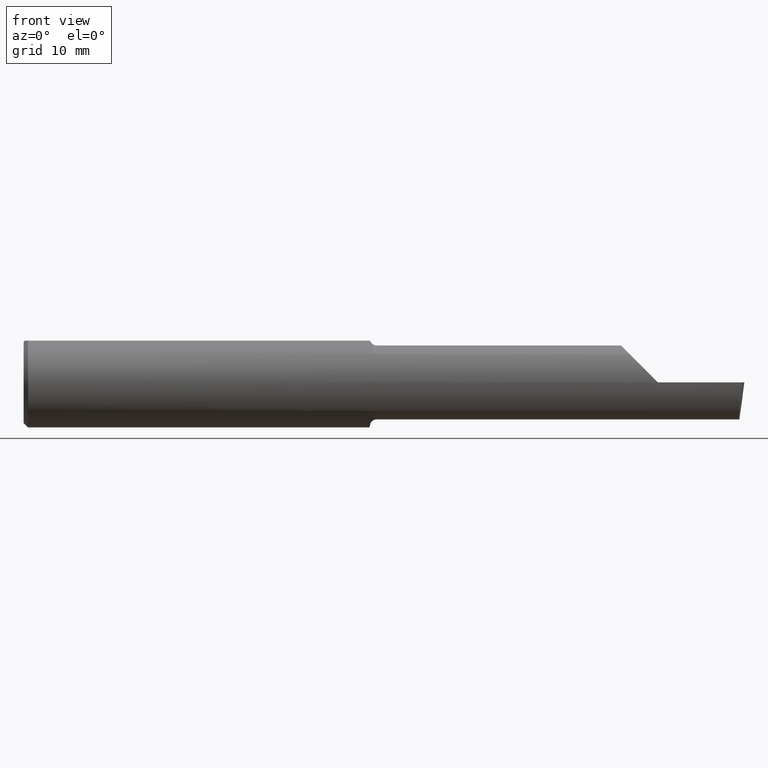
[diagram: clean part render]
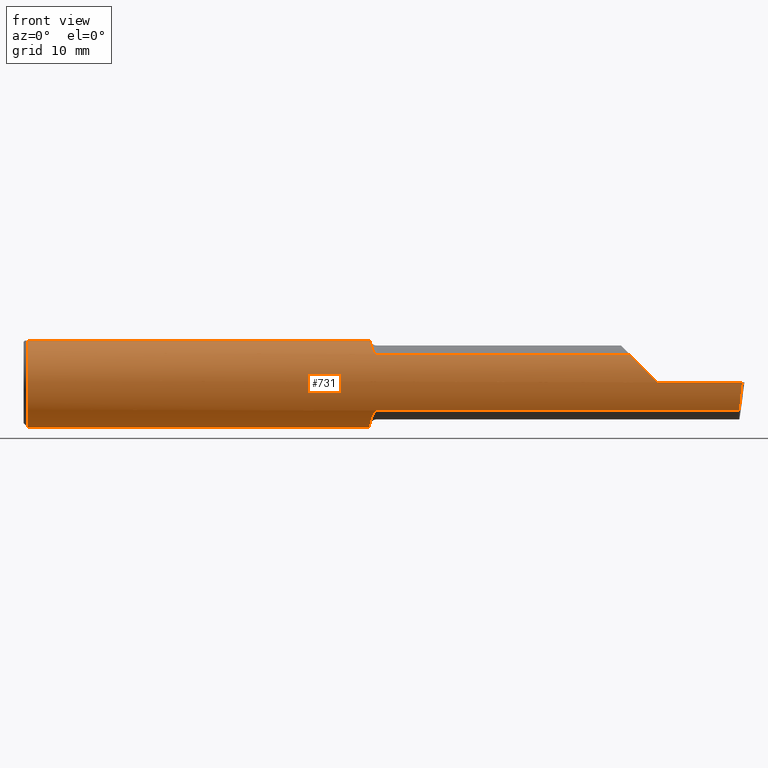
[diagram: same view with one face highlighted and labeled with its STEP entity id]
A machine part, front view. The second image highlights one B-rep face of the part: STEP entity #731.
In plain terms, the highlighted cylindrical surface (partial cylindrical patch) has radius 3.9649 mm, axis along (-1, -0, -0).
Its self-contained STEP definition (entity closure, byte-faithful):
#1 = VERTEX_POINT ( 'NONE', #236 ) ;
#7 = EDGE_CURVE ( 'NONE', #1161, #1194, #812, .T. ) ;
#21 = CARTESIAN_POINT ( 'NONE',  ( 1.199999999999999956, 0.000000000000000000, 0.000000000000000000 ) ) ;
#22 = DIRECTION ( 'NONE',  ( -1.000000000000000000, -0.000000000000000000, -0.000000000000000000 ) ) ;
#23 = VECTOR ( 'NONE', #426, 39.37007874015748143 ) ;
#32 = ORIENTED_EDGE ( 'NONE', *, *, #7, .F. ) ;
#36 = CARTESIAN_POINT ( 'NONE',  ( 1.200070502667947903, -0.03909999999937080473, -0.1511237903179019626 ) ) ;
#40 = ORIENTED_EDGE ( 'NONE', *, *, #865, .T. ) ;
#41 = VERTEX_POINT ( 'NONE', #229 ) ;
#48 = CARTESIAN_POINT ( 'NONE',  ( 1.199999999999999956, -0.03180332480818399282, -0.1528259092272810371 ) ) ;
#67 = AXIS2_PLACEMENT_3D ( 'NONE', #98, #1159, #1180 ) ;
#70 = EDGE_CURVE ( 'NONE', #898, #482, #326, .T. ) ;
#76 = CARTESIAN_POINT ( 'NONE',  ( 1.200693585322061496, -0.05594776114487193253, -0.1459932230721403268 ) ) ;
#95 = ORIENTED_EDGE ( 'NONE', *, *, #1259, .T. ) ;
#98 = CARTESIAN_POINT ( 'NONE',  ( 0.01499999999999970281, 0.000000000000000000, 0.000000000000000000 ) ) ;
#107 = DIRECTION ( 'NONE',  ( 1.000000000000000000, -0.000000000000000000, -0.000000000000000000 ) ) ;
#117 = LINE ( 'NONE', #1152, #899 ) ;
#124 = DIRECTION ( 'NONE',  ( 1.000000000000000000, 0.000000000000000000, 0.000000000000000000 ) ) ;
#137 = ORIENTED_EDGE ( 'NONE', *, *, #1196, .T. ) ;
#145 = CARTESIAN_POINT ( 'NONE',  ( 1.225000000000000089, -0.1216370843989768857, 0.09783470600413826657 ) ) ;
#154 = CARTESIAN_POINT ( 'NONE',  ( 2.484767998119733701, -0.1441601832648663484, -0.06983192264052476284 ) ) ;
#179 = CARTESIAN_POINT ( 'NONE',  ( 1.220908514272527112, -0.1205919377377055041, -0.09912203654981877055 ) ) ;
#212 = ORIENTED_EDGE ( 'NONE', *, *, #939, .F. ) ;
#229 = CARTESIAN_POINT ( 'NONE',  ( 2.200000000000000178, -0.1560999999999999888, -3.414809992080329023E-17 ) ) ;
#236 = CARTESIAN_POINT ( 'NONE',  ( 1.225000000000000089, -0.1216370843989768857, 0.09783470600413826657 ) ) ;
#241 = CARTESIAN_POINT ( 'NONE',  ( 1.201929577887086431, -0.07103093055856042615, 0.1397563129399551629 ) ) ;
#244 =( BOUNDED_CURVE ( )  B_SPLINE_CURVE ( 3, ( #639, #154, #835, #1157 ),
 .UNSPECIFIED., .F., .T. ) 
 B_SPLINE_CURVE_WITH_KNOTS ( ( 4, 4 ),
 ( 0.6661093037523301286, 1.343476681901691450 ),
 .UNSPECIFIED. ) 
 CURVE ( )  GEOMETRIC_REPRESENTATION_ITEM ( )  RATIONAL_B_SPLINE_CURVE ( ( 1.000000000000000000, 0.9621285475740493087, 0.9621285475740493087, 1.000000000000000000 ) ) 
 REPRESENTATION_ITEM ( '' )  );
#245 = CIRCLE ( 'NONE', #1057, 0.1560999999999999888 ) ;
#261 = EDGE_CURVE ( 'NONE', #1, #535, #847, .T. ) ;
#262 = EDGE_CURVE ( 'NONE', #795, #535, #651, .T. ) ;
#294 = CIRCLE ( 'NONE', #1126, 0.1560999999999999888 ) ;
#326 = LINE ( 'NONE', #540, #415 ) ;
#340 = ORIENTED_EDGE ( 'NONE', *, *, #261, .F. ) ;
#341 = CARTESIAN_POINT ( 'NONE',  ( 1.208217114436394235, -0.1003966730054529077, 0.1197372990145093297 ) ) ;
#342 = EDGE_CURVE ( 'NONE', #686, #1013, #589, .T. ) ;
#353 = CARTESIAN_POINT ( 'NONE',  ( 1.220102593030691018, -0.1200854184368516236, -0.09973678424129309161 ) ) ;
#361 = B_SPLINE_CURVE_WITH_KNOTS ( 'NONE', 3,
 ( #436, #475, #76, #1030, #641, #562, #1241, #846, #1049, #857, #957, #353, #179, #1039, #850, #766 ),
 .UNSPECIFIED., .F., .F.,
 ( 4, 2, 2, 2, 2, 2, 2, 4 ),
 ( 0.0001883738353733288681, 0.0008580644740917467254, 0.001527755112810164420, 0.002197445751528582548, 0.002532291070887791179, 0.002699713730567395061, 0.002783425060407200904, 0.002867136390247006315 ),
 .UNSPECIFIED. ) ;
#363 = DIRECTION ( 'NONE',  ( -1.000000000000000000, -0.000000000000000000, -0.000000000000000000 ) ) ;
#370 = AXIS2_PLACEMENT_3D ( 'NONE', #1187, #724, #1218 ) ;
#389 = CARTESIAN_POINT ( 'NONE',  ( 1.199999999999999956, -0.03180332480818399282, -0.1528259092272810371 ) ) ;
#414 = EDGE_CURVE ( 'NONE', #656, #898, #245, .T. ) ;
#415 = VECTOR ( 'NONE', #431, 39.37007874015748143 ) ;
#426 = DIRECTION ( 'NONE',  ( -1.000000000000000000, -0.000000000000000000, -0.000000000000000000 ) ) ;
#431 = DIRECTION ( 'NONE',  ( 1.000000000000000000, 0.000000000000000000, 0.000000000000000000 ) ) ;
#436 = CARTESIAN_POINT ( 'NONE',  ( 1.200070502667947903, -0.03909999999937080473, -0.1511237903179019626 ) ) ;
#439 = CARTESIAN_POINT ( 'NONE',  ( 1.217867731914191065, -0.1182882276500178409, 0.1018703209895042705 ) ) ;
#441 = ORIENTED_EDGE ( 'NONE', *, *, #342, .T. ) ;
#458 = B_SPLINE_CURVE_WITH_KNOTS ( 'NONE', 3,
 ( #145, #721, #537, #902, #439, #810, #824, #895, #341, #1106, #241, #804 ),
 .UNSPECIFIED., .F., .F.,
 ( 4, 2, 2, 2, 2, 4 ),
 ( 0.000000000000000000, 0.0001396255616437329242, 0.0002792511232874658484, 0.0005585022465749387441, 0.001117004493149885728, 0.002234008986299780564 ),
 .UNSPECIFIED. ) ;
#459 = CYLINDRICAL_SURFACE ( 'NONE', #1019, 0.1560999999999999888 ) ;
#470 = CARTESIAN_POINT ( 'NONE',  ( 2.200000000000000178, -0.1560999679692472164, 9.999999999916708003E-05 ) ) ;
#475 = CARTESIAN_POINT ( 'NONE',  ( 1.200237296737612702, -0.04766581783611747308, -0.1489075709079277499 ) ) ;
#481 = CARTESIAN_POINT ( 'NONE',  ( 2.200000000000000178, -0.1560999679692472164, 9.999999999916708003E-05 ) ) ;
#482 = VERTEX_POINT ( 'NONE', #1007 ) ;
#485 = ORIENTED_EDGE ( 'NONE', *, *, #593, .T. ) ;
#488 = CARTESIAN_POINT ( 'NONE',  ( 0.01499999999999970281, 0.05756040305626777820, 0.1450999999999999790 ) ) ;
#497 = CARTESIAN_POINT ( 'NONE',  ( 2.500000000000000000, -0.05756040305626777126, 0.1450999999999999790 ) ) ;
#535 = VERTEX_POINT ( 'NONE', #728 ) ;
#537 = CARTESIAN_POINT ( 'NONE',  ( 1.221486858683650034, -0.1209389976764721070, 0.09870485926566330281 ) ) ;
#540 = CARTESIAN_POINT ( 'NONE',  ( 2.500000000000000000, 0.05756040305626777820, 0.1450999999999999790 ) ) ;
#547 = VERTEX_POINT ( 'NONE', #1112 ) ;
#552 = CARTESIAN_POINT ( 'NONE',  ( 1.200923003856320115, -0.05756040305626777126, 0.1450999999999999790 ) ) ;
#562 = CARTESIAN_POINT ( 'NONE',  ( 1.206370578245679059, -0.09421081693119257028, -0.1247695637178515421 ) ) ;
#589 = LINE ( 'NONE', #497, #1183 ) ;
#593 = EDGE_CURVE ( 'NONE', #767, #1194, #361, .T. ) ;
#617 = DIRECTION ( 'NONE',  ( 0.000000000000000000, 0.000000000000000000, -1.000000000000000000 ) ) ;
#623 = CIRCLE ( 'NONE', #67, 0.1560999999999999888 ) ;
#628 = CARTESIAN_POINT ( 'NONE',  ( 0.01499999999999970281, -0.05756040305626777126, 0.1450999999999999790 ) ) ;
#639 = CARTESIAN_POINT ( 'NONE',  ( 2.482171087834817325, -0.1216370843989768719, -0.09783470600413822493 ) ) ;
#641 = CARTESIAN_POINT ( 'NONE',  ( 1.203357683339779660, -0.07974082299786153238, -0.1344787091134109769 ) ) ;
#651 =( BOUNDED_CURVE ( )  B_SPLINE_CURVE ( 3, ( #470, #1242, #759, #1050 ),
 .UNSPECIFIED., .F., .F. ) 
 B_SPLINE_CURVE_WITH_KNOTS ( ( 4, 4 ),
 ( 4.713029595418891660, 5.389756358534060432 ),
 .UNSPECIFIED. ) 
 CURVE ( )  GEOMETRIC_REPRESENTATION_ITEM ( )  RATIONAL_B_SPLINE_CURVE ( ( 1.000000000000000000, 0.9621994625444685312, 0.9621994625444685312, 1.000000000000000000 ) ) 
 REPRESENTATION_ITEM ( '' )  );
#656 = VERTEX_POINT ( 'NONE', #1237 ) ;
#670 = B_SPLINE_CURVE_WITH_KNOTS ( 'NONE', 3,
 ( #48, #923, #1195, #36 ),
 .UNSPECIFIED., .F., .F.,
 ( 4, 4 ),
 ( 0.000000000000000000, 0.0001883738353733288681 ),
 .UNSPECIFIED. ) ;
#686 = VERTEX_POINT ( 'NONE', #552 ) ;
#697 = CARTESIAN_POINT ( 'NONE',  ( 1.200070502667947903, -0.03909999999937080473, -0.1511237903179019626 ) ) ;
#721 = CARTESIAN_POINT ( 'NONE',  ( 1.223137756070363125, -0.1216370843989768857, 0.09783470600413826657 ) ) ;
#724 = DIRECTION ( 'NONE',  ( -1.000000000000000000, -0.000000000000000000, -0.000000000000000000 ) ) ;
#728 = CARTESIAN_POINT ( 'NONE',  ( 2.102265293995860596, -0.1216370843989760669, 0.09783470600413915474 ) ) ;
#731 = ADVANCED_FACE ( 'NONE', ( #1043 ), #459, .T. ) ;
#737 = CARTESIAN_POINT ( 'NONE',  ( 2.482171087834817325, -0.1216370843989768719, -0.09783470600413822493 ) ) ;
#755 = DIRECTION ( 'NONE',  ( 1.000000000000000000, 0.000000000000000000, 0.000000000000000000 ) ) ;
#759 = CARTESIAN_POINT ( 'NONE',  ( 2.130240550987920312, -0.1441380433518480719, 0.06985944901207970237 ) ) ;
#766 = CARTESIAN_POINT ( 'NONE',  ( 1.225000000000000089, -0.1216370843989768857, -0.09783470600413826657 ) ) ;
#767 = VERTEX_POINT ( 'NONE', #697 ) ;
#770 = EDGE_CURVE ( 'NONE', #547, #41, #117, .T. ) ;
#785 = EDGE_LOOP ( 'NONE', ( #32, #137, #863, #95, #1009, #340, #901, #441, #40, #994, #1145, #212, #849, #485 ) ) ;
#795 = VERTEX_POINT ( 'NONE', #481 ) ;
#804 = CARTESIAN_POINT ( 'NONE',  ( 1.200923003856320115, -0.05756040305626777126, 0.1450999999999999790 ) ) ;
#810 = CARTESIAN_POINT ( 'NONE',  ( 1.215109041388941602, -0.1151838954306814156, 0.1054026025757672930 ) ) ;
#812 = LINE ( 'NONE', #931, #23 ) ;
#824 = CARTESIAN_POINT ( 'NONE',  ( 1.213719413241317602, -0.1129003697571845238, 0.1078537482372466522 ) ) ;
#833 = VERTEX_POINT ( 'NONE', #389 ) ;
#835 = CARTESIAN_POINT ( 'NONE',  ( 2.488315193899383715, -0.1560999999999999055, -0.03593669237189370952 ) ) ;
#846 = CARTESIAN_POINT ( 'NONE',  ( 1.212238239912811544, -0.1102296424802847036, -0.1106107383979933328 ) ) ;
#847 = LINE ( 'NONE', #1238, #851 ) ;
#849 = ORIENTED_EDGE ( 'NONE', *, *, #1026, .T. ) ;
#850 = CARTESIAN_POINT ( 'NONE',  ( 1.223867662415712321, -0.1216370843989732636, -0.09783470600415562768 ) ) ;
#851 = VECTOR ( 'NONE', #755, 39.37007874015748143 ) ;
#857 = CARTESIAN_POINT ( 'NONE',  ( 1.216806218912372728, -0.1171774628589774131, -0.1031533257679469323 ) ) ;
#863 = ORIENTED_EDGE ( 'NONE', *, *, #770, .T. ) ;
#865 = EDGE_CURVE ( 'NONE', #1013, #656, #623, .T. ) ;
#872 = CIRCLE ( 'NONE', #370, 0.1560999999999999888 ) ;
#895 = CARTESIAN_POINT ( 'NONE',  ( 1.209989344716204229, -0.1056466301307415478, 0.1151210560347140921 ) ) ;
#898 = VERTEX_POINT ( 'NONE', #488 ) ;
#899 = VECTOR ( 'NONE', #1085, 39.37007874015748143 ) ;
#901 = ORIENTED_EDGE ( 'NONE', *, *, #1051, .T. ) ;
#902 = CARTESIAN_POINT ( 'NONE',  ( 1.218911233486989376, -0.1192830797304079565, 0.1006997382899938037 ) ) ;
#923 = CARTESIAN_POINT ( 'NONE',  ( 1.199999999999999956, -0.03425850825364696456, -0.1523149814862027052 ) ) ;
#931 = CARTESIAN_POINT ( 'NONE',  ( 1.715000000000000080, -0.1216370843989768857, -0.09783470600413826657 ) ) ;
#939 = EDGE_CURVE ( 'NONE', #833, #482, #294, .T. ) ;
#957 = CARTESIAN_POINT ( 'NONE',  ( 1.217939395587248841, -0.1184439733767498198, -0.1016913495756627400 ) ) ;
#980 = CARTESIAN_POINT ( 'NONE',  ( 0.01499999999999970281, 0.000000000000000000, 0.000000000000000000 ) ) ;
#994 = ORIENTED_EDGE ( 'NONE', *, *, #414, .T. ) ;
#1007 = CARTESIAN_POINT ( 'NONE',  ( 1.199999999999999956, 0.05756040305626777820, 0.1450999999999999790 ) ) ;
#1009 = ORIENTED_EDGE ( 'NONE', *, *, #262, .T. ) ;
#1013 = VERTEX_POINT ( 'NONE', #628 ) ;
#1019 = AXIS2_PLACEMENT_3D ( 'NONE', #1230, #363, #1135 ) ;
#1020 = CARTESIAN_POINT ( 'NONE',  ( 1.225000000000000089, -0.1216370843989768857, -0.09783470600413826657 ) ) ;
#1026 = EDGE_CURVE ( 'NONE', #833, #767, #670, .T. ) ;
#1030 = CARTESIAN_POINT ( 'NONE',  ( 1.202248170719331988, -0.07195351093344531934, -0.1388051347193824669 ) ) ;
#1039 = CARTESIAN_POINT ( 'NONE',  ( 1.222786615660544696, -0.1213746739591468060, -0.09816201963299775457 ) ) ;
#1043 = FACE_OUTER_BOUND ( 'NONE', #785, .T. ) ;
#1049 = CARTESIAN_POINT ( 'NONE',  ( 1.213763984891131020, -0.1131777995559070105, -0.1075816962308318719 ) ) ;
#1050 = CARTESIAN_POINT ( 'NONE',  ( 2.102265293995860596, -0.1216370843989760669, 0.09783470600413915474 ) ) ;
#1051 = EDGE_CURVE ( 'NONE', #1, #686, #458, .T. ) ;
#1057 = AXIS2_PLACEMENT_3D ( 'NONE', #980, #107, #1094 ) ;
#1085 = DIRECTION ( 'NONE',  ( -1.000000000000000000, -0.000000000000000000, -0.000000000000000000 ) ) ;
#1094 = DIRECTION ( 'NONE',  ( 0.000000000000000000, 0.000000000000000000, -1.000000000000000000 ) ) ;
#1106 = CARTESIAN_POINT ( 'NONE',  ( 1.203726900826447288, -0.08366328655074625753, 0.1325325446331694079 ) ) ;
#1112 = CARTESIAN_POINT ( 'NONE',  ( 2.492409662805121773, -0.1560999999999999333, -6.829619984160658046E-17 ) ) ;
#1126 = AXIS2_PLACEMENT_3D ( 'NONE', #21, #124, #617 ) ;
#1135 = DIRECTION ( 'NONE',  ( 0.000000000000000000, 0.000000000000000000, 1.000000000000000000 ) ) ;
#1145 = ORIENTED_EDGE ( 'NONE', *, *, #70, .T. ) ;
#1152 = CARTESIAN_POINT ( 'NONE',  ( 2.500000000000000000, -0.1560999999999999333, -3.414809992080329023E-17 ) ) ;
#1157 = CARTESIAN_POINT ( 'NONE',  ( 2.492409662805121773, -0.1560999999999999333, -6.829619984160658046E-17 ) ) ;
#1159 = DIRECTION ( 'NONE',  ( 1.000000000000000000, -0.000000000000000000, -0.000000000000000000 ) ) ;
#1161 = VERTEX_POINT ( 'NONE', #737 ) ;
#1180 = DIRECTION ( 'NONE',  ( 0.000000000000000000, 0.000000000000000000, -1.000000000000000000 ) ) ;
#1183 = VECTOR ( 'NONE', #22, 39.37007874015748143 ) ;
#1187 = CARTESIAN_POINT ( 'NONE',  ( 2.200000000000000178, 0.000000000000000000, 0.000000000000000000 ) ) ;
#1194 = VERTEX_POINT ( 'NONE', #1020 ) ;
#1195 = CARTESIAN_POINT ( 'NONE',  ( 1.200023586021956579, -0.03669056515628395243, -0.1517471792771452332 ) ) ;
#1196 = EDGE_CURVE ( 'NONE', #1161, #547, #244, .T. ) ;
#1218 = DIRECTION ( 'NONE',  ( 0.000000000000000000, 0.000000000000000000, 1.000000000000000000 ) ) ;
#1230 = CARTESIAN_POINT ( 'NONE',  ( 2.500000000000000000, 0.000000000000000000, 0.000000000000000000 ) ) ;
#1237 = CARTESIAN_POINT ( 'NONE',  ( 0.01499999999999970281, 0.000000000000000000, -0.1560999999999999888 ) ) ;
#1238 = CARTESIAN_POINT ( 'NONE',  ( 1.715000000000000080, -0.1216370843989768857, 0.09783470600413826657 ) ) ;
#1241 = CARTESIAN_POINT ( 'NONE',  ( 1.208223305606259679, -0.1009471419498618600, -0.1193703591905347500 ) ) ;
#1242 = CARTESIAN_POINT ( 'NONE',  ( 2.164098640295684106, -0.1560769690153261668, 0.03600135970431547067 ) ) ;
#1259 = EDGE_CURVE ( 'NONE', #41, #795, #872, .T. ) ;